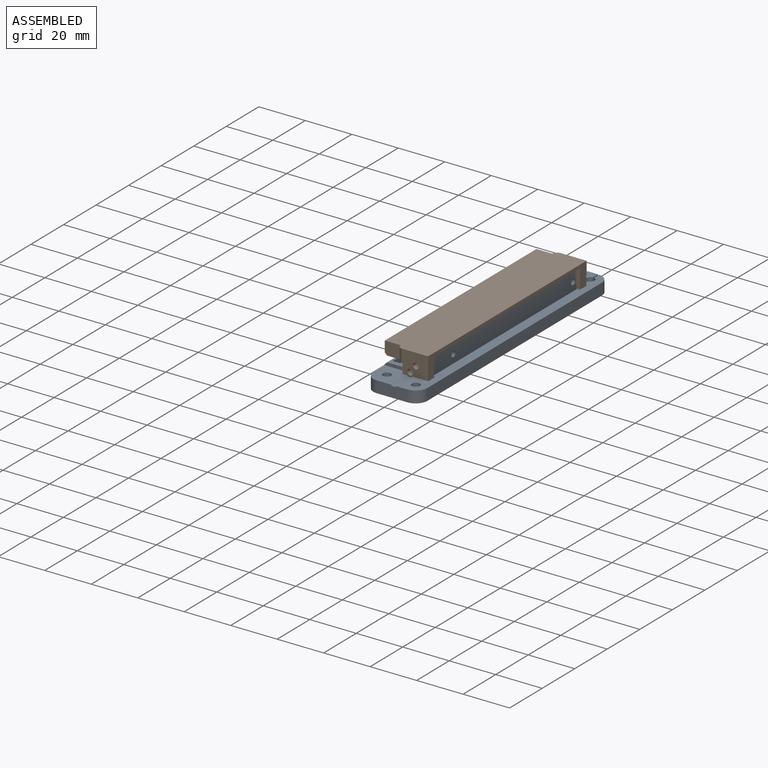
[diagram: assembled view]
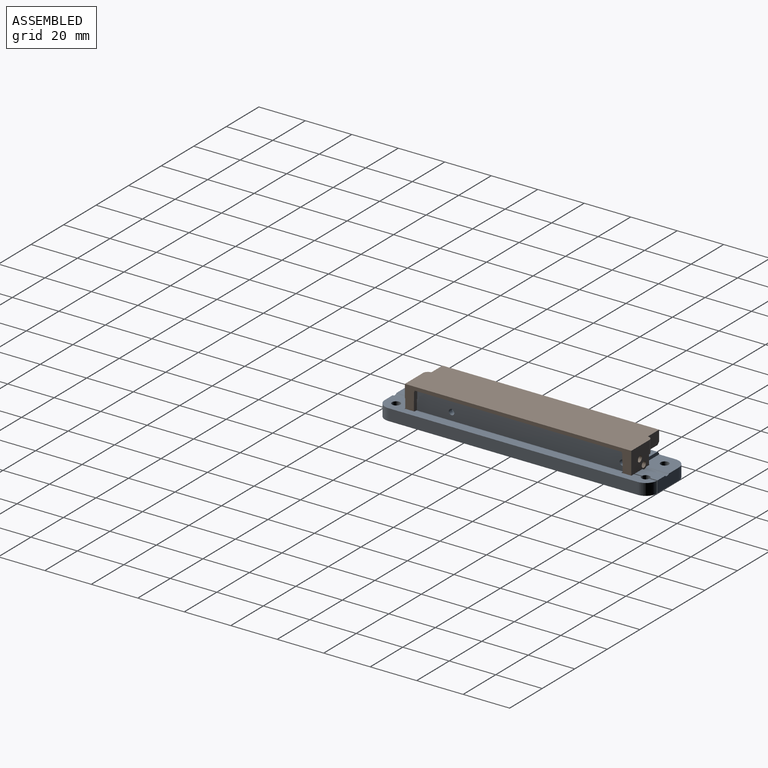
[diagram: assembled view, second angle]
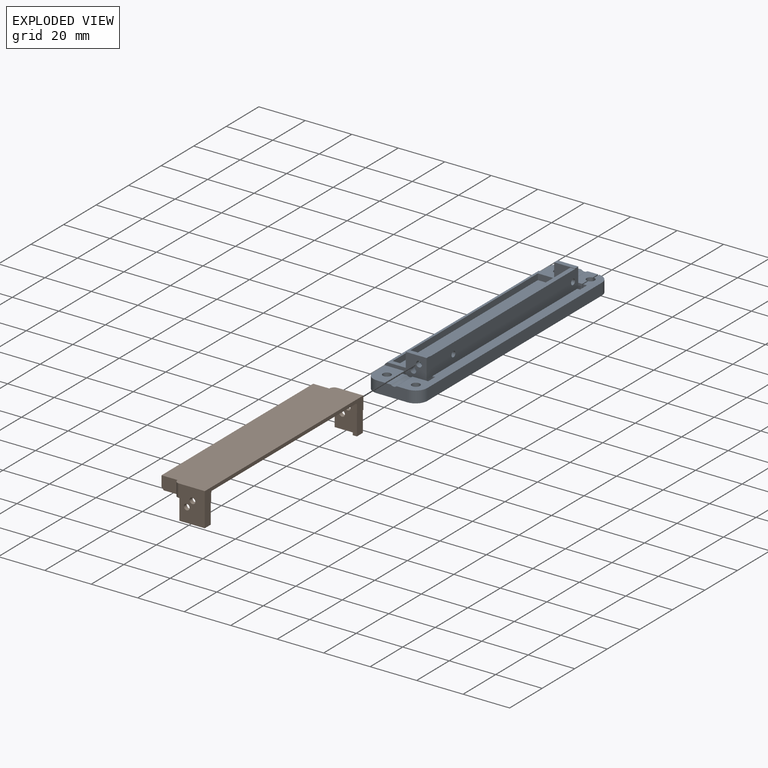
[diagram: exploded view]
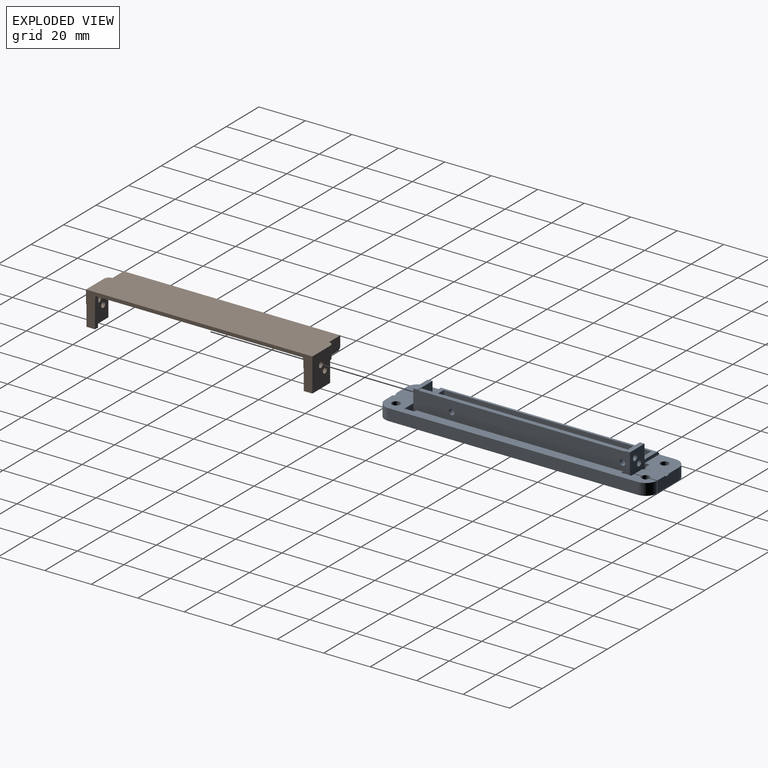
[diagram: exploded view, second angle]
ASSEMBLY  parts=2 mates=3
PART A: 56 faces, bbox 117.2x23.2x12.6 mm
  f0: plane 13.1x5mm, normal (1,0,0), area 64.7mm2, adj f1,f7,f8,f39,f42,f53
  f1: plane 12x11.03mm, normal (0,0,1), area 112.6mm2, adj f0,f5,f9,f14,f31,f33,f42,f53
  f2: plane 117.2x9.73mm, normal (0,0,1), area 515.8mm2, adj f3,f22,f24,f25,f26,f27,f28,f29
  f3: plane 13.2x5mm, normal (-1,0,0), area 65.2mm2, adj f2,f6,f8,f44,f45,f52
  f4: plane 16x12.6mm, normal (1,0,0), area 81.8mm2, adj f8,f10,f12,f13,f16,f19,f20,f21
  f5: plane 9.2x5mm, normal (-1,0,0), area 45.2mm2, adj f1,f7,f8,f31,f41,f53
  f6: plane 12x11.03mm, normal (0,0,1), area 112.6mm2, adj f3,f14,f15,f23,f24,f34,f45,f52
  f7: plane 9.8x4.63mm, normal (0,0,1), area 41.4mm2, adj f0,f5,f39,f40,f41,f53
  f8: plane 117.2x23.2mm, normal (0,0,-1), area 2240.5mm2, adj f0,f3,f4,f5,f9,f10,f12,f14
  f9: plane 18x12.6mm, normal (1,0,0), area 116.2mm2, adj f1,f8,f11,f12,f13,f14,f18,f31
  f10: plane 89.2x12.4mm, normal (0,1,0), area 1097mm2, adj f4,f8,f17,f21,f54,f55
  f11: plane 9x2mm, normal (0,0,1), area 18mm2, adj f9,f12,f17,f18
  f12: plane 93.2x12.6mm, normal (0,-1,0), area 1147.4mm2, adj f4,f8,f9,f11,f15,f17,f20,f21
  f13: plane 93.2x8mm, normal (0,0,1), area 121.2mm2, adj f4,f9,f15,f16,f17,f18,f19,f32
  f14: plane 107.2x5.4mm, normal (0,1,0), area 573.3mm2, adj f1,f6,f8,f9,f15,f32,f42,f45
  f15: plane 18x12.6mm, normal (-1,0,0), area 116.2mm2, adj f6,f8,f12,f13,f14,f19,f20,f23
  f16: plane 89.2x2.6mm, normal (0,-1,0), area 231.9mm2, adj f4,f13,f17,f47
  f17: plane 16x12.6mm, normal (-1,0,0), area 81.8mm2, adj f8,f10,f11,f12,f13,f16,f18,f21
  f18: plane 6.2x2mm, normal (0,1,0), area 12.4mm2, adj f9,f11,f13,f17
  f19: plane 6.2x2mm, normal (0,1,0), area 12.4mm2, adj f4,f13,f15,f20
  f20: plane 9x2mm, normal (0,0,1), area 18mm2, adj f4,f12,f15,f19
  f21: plane 89.2x2mm, normal (0,0,1), area 178.4mm2, adj f4,f10,f12,f17
  f22: plane 107.22x5mm, normal (0,-1,0), area 536.1mm2, adj f2,f8,f43,f44
  f23: plane 5x2.2mm, normal (0,-1,0), area 11mm2, adj f6,f8,f15,f24
  f24: plane 11.3x5mm, normal (1,0,0), area 55.7mm2, adj f2,f6,f8,f23,f25,f52
  f25: plane 5x4.3mm, normal (0,1,0), area 21.5mm2, adj f2,f8,f24,f26
  f26: plane 5x1.2mm, normal (-1,0,0), area 6mm2, adj f2,f8,f25,f27
  f27: plane 89x5mm, normal (0,1,0), area 445mm2, adj f2,f8,f26,f28
  f28: plane 5x1.2mm, normal (1,0,0), area 6mm2, adj f2,f8,f27,f29
  f29: plane 5x4.3mm, normal (0,1,0), area 21.5mm2, adj f2,f8,f28,f30
  f30: plane 5x1.6mm, normal (-1,0,0), area 8mm2, adj f2,f8,f29,f38
  f31: plane 5x2.2mm, normal (0,-1,0), area 11mm2, adj f1,f5,f8,f9
  f32: plane 93.2x1mm, normal (0,0.71,0.71), area 131.8mm2, adj f9,f13,f14,f15
  f33: cylinder r=1.75mm len=5mm, axis (0,0,1), area 55mm2, adj f1,f8
  f34: cylinder r=1.75mm len=5mm, axis (0,0,1), area 55mm2, adj f6,f8
  f35: cylinder r=1.75mm len=5mm, axis (0,0,1), area 55mm2, adj f2,f8
  f36: plane 5x3.17mm, normal (0,1,0), area 15.8mm2, adj f2,f8,f37,f43
  f37: cylinder r=1.75mm len=5mm, axis (0,0,1), area 25mm2, adj f2,f8,f36,f38
  f38: plane 5x3.17mm, normal (0,1,0), area 15.8mm2, adj f2,f8,f30,f37
  f39: plane 5x3.17mm, normal (0,-1,0), area 15.8mm2, adj f0,f7,f8,f40
  f40: cylinder r=1.75mm len=5mm, axis (0,0,1), area 25mm2, adj f7,f8,f39,f41
  f41: plane 5x3.17mm, normal (0,-1,0), area 15.8mm2, adj f5,f7,f8,f40
  f42: cylinder r=5mm len=5mm, axis (0,0,-1), area 39.3mm2, adj f0,f1,f8,f14
  f43: cylinder r=5mm len=5mm, axis (0,0,1), area 37.3mm2, adj f2,f8,f22,f36
  f44: cylinder r=5mm len=5mm, axis (0,0,-1), area 39.3mm2, adj f2,f3,f8,f22
  f45: cylinder r=5mm len=5mm, axis (0,0,-1), area 39.3mm2, adj f3,f6,f8,f14
  f46: plane 89.2x3.8mm, normal (0,-1,0), area 339mm2, adj f4,f8,f17,f47
  f47: plane 89.2x11mm, normal (0,0,1), area 981.2mm2, adj f4,f16,f17,f46
  f48: cylinder r=1.25mm len=2.5mm, axis (1,0,0), area 15.7mm2, adj f9,f17
  f49: cylinder r=1.25mm len=2.5mm, axis (1,0,0), area 15.7mm2, adj f9,f17
  f50: cylinder r=1.25mm len=2.5mm, axis (1,0,0), area 15.7mm2, adj f4,f15
  f51: cylinder r=1.25mm len=2.5mm, axis (1,0,0), area 15.7mm2, adj f4,f15
  f52: cylinder r=1.75mm len=9.8mm, axis (-1,0,0), area 26.6mm2, adj f2,f3,f6,f24
  f53: cylinder r=1.75mm len=9.8mm, axis (1,0,0), area 26.6mm2, adj f0,f1,f5,f7
  f54: cylinder r=1.2mm len=2.4mm, axis (0,1,0), area 15.1mm2, adj f10,f12
  f55: cylinder r=1.2mm len=2.4mm, axis (0,1,0), area 15.1mm2, adj f10,f12
PART B: 47 faces, bbox 97.4x20.1x14.5 mm
  f0: plane 3.6x2mm, normal (1,0,0), area 7.2mm2, adj f2,f9,f19,f38
  f1: cylinder r=1.25mm len=2.5mm, axis (1,0,0), area 15.1mm2, adj f13,f17,f20,f38,f39,f40
  f2: plane 97.4x5.6mm, normal (0,-1,0), area 178.3mm2, adj f0,f3,f4,f8,f9,f13,f14,f15
  f3: plane 3.6x2mm, normal (-1,0,0), area 7.2mm2, adj f2,f7,f9,f29
  f4: plane 11.1x5.6mm, normal (1,0,0), area 58.8mm2, adj f2,f5,f15,f17,f22,f29
  f5: cylinder r=1.25mm len=2.5mm, axis (1,0,0), area 15.1mm2, adj f4,f17,f18,f29,f30,f31
  f6: plane 3.6x1.9mm, normal (0,-1,0), area 6.8mm2, adj f9,f17,f18,f26
  f7: plane 3.6x1.9mm, normal (0,1,0), area 6.8mm2, adj f3,f9,f18,f29
  f8: plane 7x0.5mm, normal (-1,0,0), area 3.5mm2, adj f2,f9,f24,f25
  f9: plane 93.4x18.3mm, normal (0,0,-1), area 1050.2mm2, adj f0,f2,f3,f6,f7,f8,f14,f16
  f10: plane 6.9x5.6mm, normal (1,0,0), area 38.1mm2, adj f11,f15,f17,f22,f23
  f11: plane 93.2x4.6mm, normal (0,1,0), area 428.7mm2, adj f10,f12,f15,f23
  f12: plane 6.9x5.6mm, normal (-1,0,0), area 38.1mm2, adj f11,f15,f17,f21,f23
  f13: plane 11.1x5.6mm, normal (-1,0,0), area 58.8mm2, adj f1,f2,f15,f17,f21,f38
  f14: plane 7x0.5mm, normal (1,0,0), area 3.5mm2, adj f2,f9,f24,f25
  f15: plane 97.4x20.1mm, normal (0,0,1), area 1926.9mm2, adj f2,f4,f10,f11,f12,f13,f21,f22
  f16: plane 3.6x1.9mm, normal (0,-1,0), area 6.8mm2, adj f9,f17,f20,f27
  f17: plane 97.4x12.55mm, normal (0,0,-1), area 109.2mm2, adj f1,f4,f5,f6,f10,f12,f13,f16
  f18: plane 9.2x3.6mm, normal (-1,0,0), area 29.8mm2, adj f5,f6,f7,f9,f17,f29
  f19: plane 3.6x1.9mm, normal (0,1,0), area 6.8mm2, adj f0,f9,f20,f38
  f20: plane 9.2x3.6mm, normal (1,0,0), area 29.8mm2, adj f1,f9,f16,f17,f19,f38
  f21: cylinder r=2.1mm len=5.6mm, axis (0,0,1), area 18.5mm2, adj f12,f13,f15,f17
  f22: cylinder r=2.1mm len=5.6mm, axis (0,0,1), area 18.5mm2, adj f4,f10,f15,f17
  f23: plane 93.2x1mm, normal (0,0.71,-0.71), area 131.8mm2, adj f10,f11,f12,f17
  f24: plane 89.2x0.5mm, normal (0,-1,0), area 44.6mm2, adj f8,f9,f14,f25
  f25: plane 89.2x7mm, normal (0,0,-1), area 624.4mm2, adj f2,f8,f14,f24
  f26: plane 7.1x3.6mm, normal (-1,0,0), area 25.6mm2, adj f6,f9,f17,f28
  f27: plane 7.1x3.6mm, normal (1,0,0), area 25.6mm2, adj f9,f16,f17,f28
  f28: plane 89.6x3.6mm, normal (0,-1,0), area 322.6mm2, adj f9,f17,f26,f27
  f29: plane 4.15x3.9mm, normal (0,0,-1), area 1.4mm2, adj f2,f3,f4,f5,f7,f18,f30,f31
  f30: plane 9.1x8.9mm, normal (-1,0,0), area 74.5mm2, adj f5,f17,f29,f32,f35,f36,f37
  f31: plane 10.9x8.9mm, normal (1,0,0), area 90.5mm2, adj f5,f17,f29,f34,f35,f36,f37
  f32: plane 8.9x1.9mm, normal (0,1,0), area 16.9mm2, adj f29,f30,f33,f37
  f33: plane 8.9x1.8mm, normal (-1,0,0), area 16mm2, adj f29,f32,f34,f37
  f34: plane 8.9x3.7mm, normal (0,-1,0), area 32.9mm2, adj f29,f31,f33,f37
  f35: plane 8.9x1.8mm, normal (0,1,0), area 16mm2, adj f17,f30,f31,f37
  f36: cylinder r=1.25mm len=2.5mm, axis (1,0,0), area 14.1mm2, adj f30,f31
  f37: plane 10.9x3.7mm, normal (0,0,-1), area 23mm2, adj f30,f31,f32,f33,f34,f35
  f38: plane 4.15x3.9mm, normal (0,0,-1), area 1.4mm2, adj f0,f1,f2,f13,f19,f20,f39,f40
  f39: plane 10.9x8.9mm, normal (-1,0,0), area 90.5mm2, adj f1,f17,f38,f41,f42,f45,f46
  f40: plane 9.1x8.9mm, normal (1,0,0), area 74.5mm2, adj f1,f17,f38,f41,f44,f45,f46
  f41: plane 8.9x1.8mm, normal (0,1,0), area 16mm2, adj f17,f39,f40,f46
  f42: plane 8.9x3.7mm, normal (0,-1,0), area 32.9mm2, adj f38,f39,f43,f46
  f43: plane 8.9x1.8mm, normal (1,0,0), area 16mm2, adj f38,f42,f44,f46
  f44: plane 8.9x1.9mm, normal (0,1,0), area 16.9mm2, adj f38,f40,f43,f46
  f45: cylinder r=1.25mm len=2.5mm, axis (1,0,0), area 14.1mm2, adj f39,f40
  f46: plane 10.9x3.7mm, normal (0,0,-1), area 23mm2, adj f39,f40,f41,f42,f43,f44
PLACE A rot(axis=(0,0,1),90deg) t=(54.79,-36.44,52.7)mm
PLACE B rot(axis=(0,0,1),90deg) t=(54.79,-36.44,52.7)mm
MATE planar A.f49 <-> B.f10  axis (0,1,0) through (63.14,10.16,61.05)mm
MATE planar B.f11 <-> A.f14  axis (-1,0,0) through (48.39,-36.44,64)mm
MATE planar B.f9 <-> A.f11  axis (0,0,-1) through (56.07,-36.44,64.3)mm
